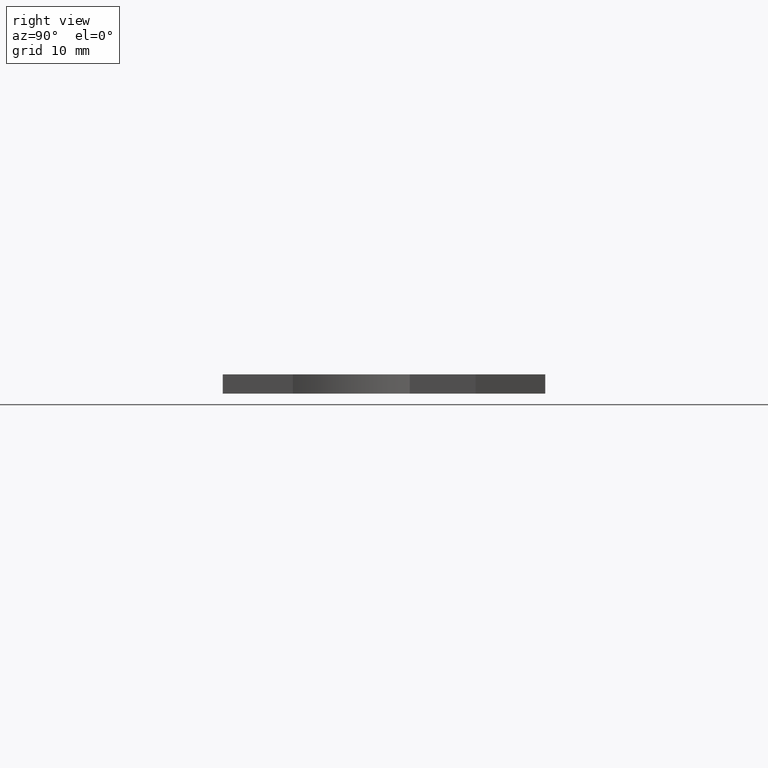
[diagram: clean part render]
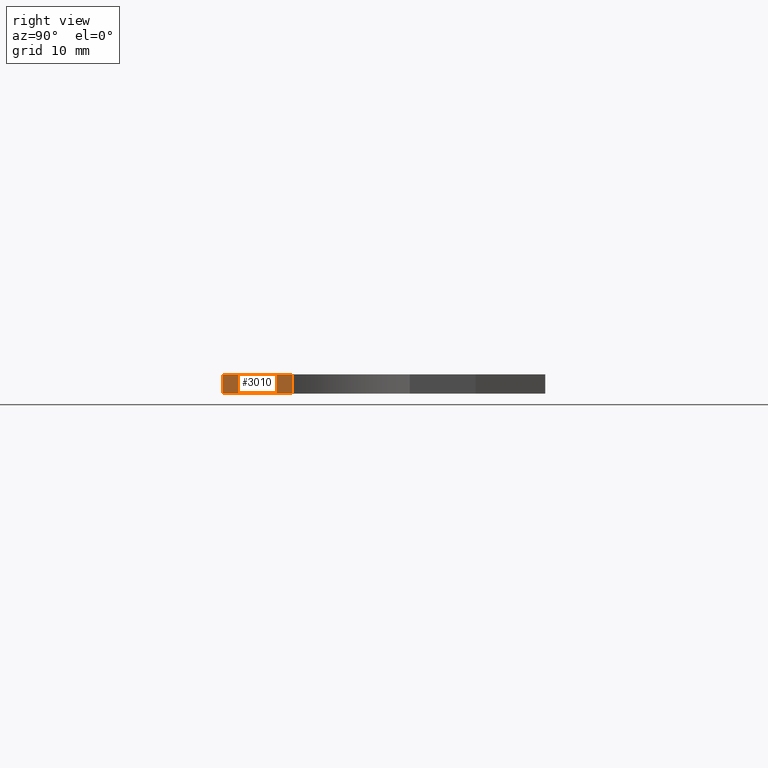
[diagram: same view with one face highlighted and labeled with its STEP entity id]
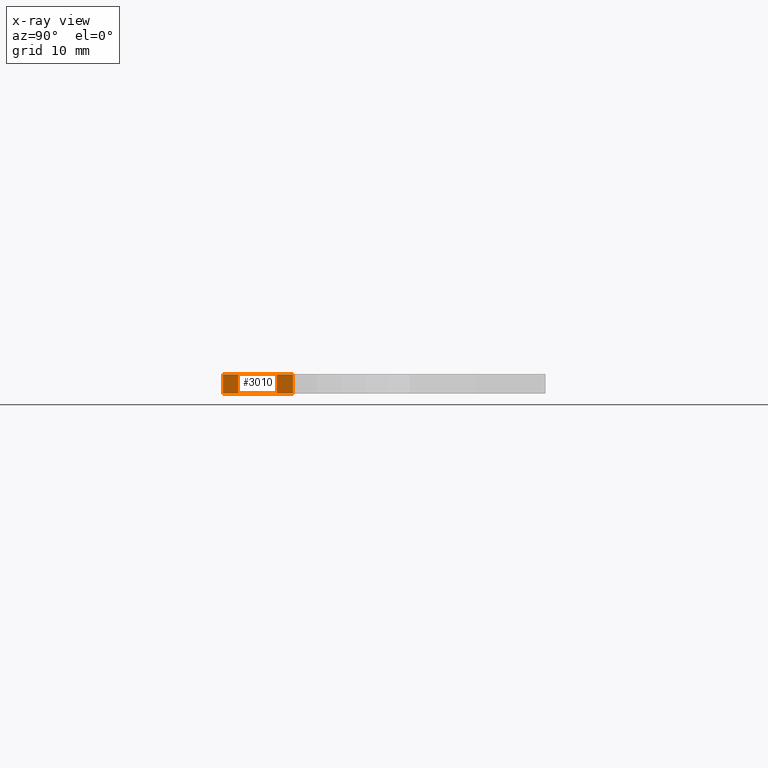
[diagram: x-ray of the same camera — body ghosted, the highlighted face saturated]
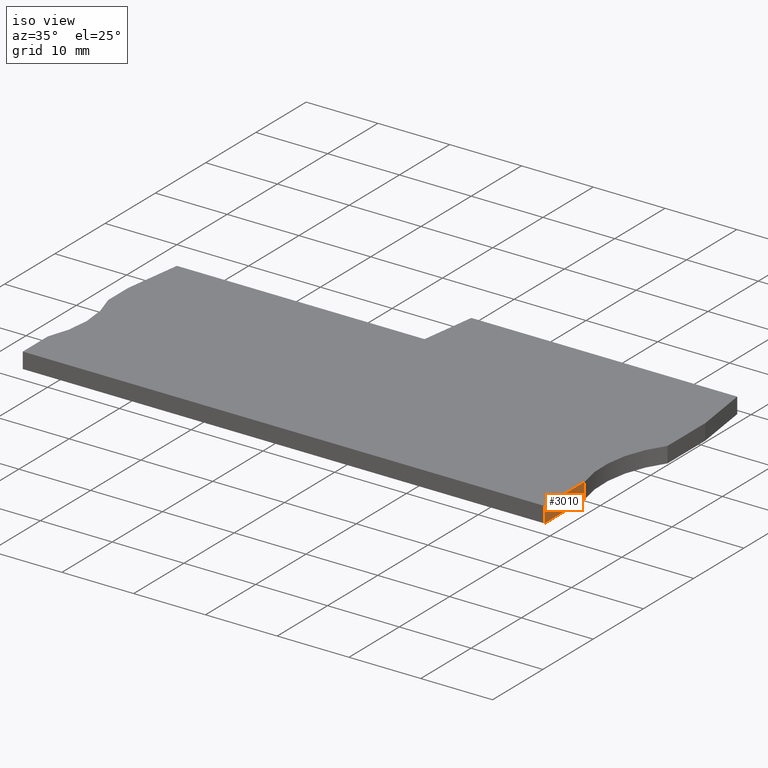
[diagram: same view with one face highlighted and labeled with its STEP entity id]
A machine part, right view. The second image highlights one B-rep face of the part: STEP entity #3010.
The next image is the same camera in x-ray: the body ghosted, the highlighted face saturated — about 0% of this face is hidden behind the body in this view.
A second angle (iso view) of the same face is appended — the face is thin or edge-on in the first view.
In plain terms, the highlighted planar face has unit normal (1, 0, 0).
Its self-contained STEP definition (entity closure, byte-faithful):
#200=CARTESIAN_POINT('',(73.6828428310876,-65.5405475857204,
-8.0999999999828));
#210=VERTEX_POINT('',#200);
#240=CARTESIAN_POINT('',(73.6828428311077,0.,-8.09999999992604));
#250=DIRECTION('',(3.05588887526906E-13,1.,8.65946784952771E-13));
#260=VECTOR('',#250,1.);
#270=LINE('',#240,#260);
#280=CARTESIAN_POINT('',(73.6828428310852,-73.5405475856063,
-8.09999999998973));
#290=VERTEX_POINT('',#280);
#300=EDGE_CURVE('',#290,#210,#270,.T.);
#1910=CARTESIAN_POINT('',(73.6828428310914,-73.5405475856044,
-10.2999999999348));
#1920=VERTEX_POINT('',#1910);
#1950=CARTESIAN_POINT('',(73.6828428311139,0.,-10.2999999999421));
#1960=DIRECTION('',(3.05588887530108E-13,1.,-2.65115463621014E-13));
#1970=VECTOR('',#1960,1.);
#1980=LINE('',#1950,#1970);
#1990=CARTESIAN_POINT('',(73.6828428310939,-65.5405475857185,
-10.2999999999247));
#2000=VERTEX_POINT('',#1990);
#2010=EDGE_CURVE('',#1920,#2000,#1980,.T.);
#2320=CARTESIAN_POINT('',(73.6828428310852,-73.5405475856063,
-8.09999999998973));
#2330=DIRECTION('',(-2.83162617508304E-12,-8.65946784951905E-13,1.));
#2340=VECTOR('',#2330,1.);
#2350=LINE('',#2320,#2340);
#2360=EDGE_CURVE('',#1920,#290,#2350,.T.);
#2850=CARTESIAN_POINT('',(73.6828428310853,-73.2432933798129,
-8.09999999998947));
#2860=DIRECTION('',(1.,-3.05588887529358E-13,2.83162617508277E-12));
#2870=DIRECTION('',(-3.05588887526906E-13,-1.,-8.65946784952771E-13));
#2880=AXIS2_PLACEMENT_3D('',#2850,#2860,#2870);
#2890=PLANE('',#2880);
#2900=CARTESIAN_POINT('',(73.6828428310647,-65.5405475857275,0.));
#2910=DIRECTION('',(-2.83162617508304E-12,-8.65946784951905E-13,1.));
#2920=VECTOR('',#2910,1.);
#2930=LINE('',#2900,#2920);
#2940=EDGE_CURVE('',#2000,#210,#2930,.T.);
#2950=ORIENTED_EDGE('',*,*,#2940,.T.);
#2960=ORIENTED_EDGE('',*,*,#2010,.T.);
#2970=ORIENTED_EDGE('',*,*,#2360,.F.);
#2980=ORIENTED_EDGE('',*,*,#300,.F.);
#2990=EDGE_LOOP('',(#2980,#2970,#2960,#2950));
#3000=FACE_OUTER_BOUND('',#2990,.T.);
#3010=ADVANCED_FACE('',(#3000),#2890,.T.);